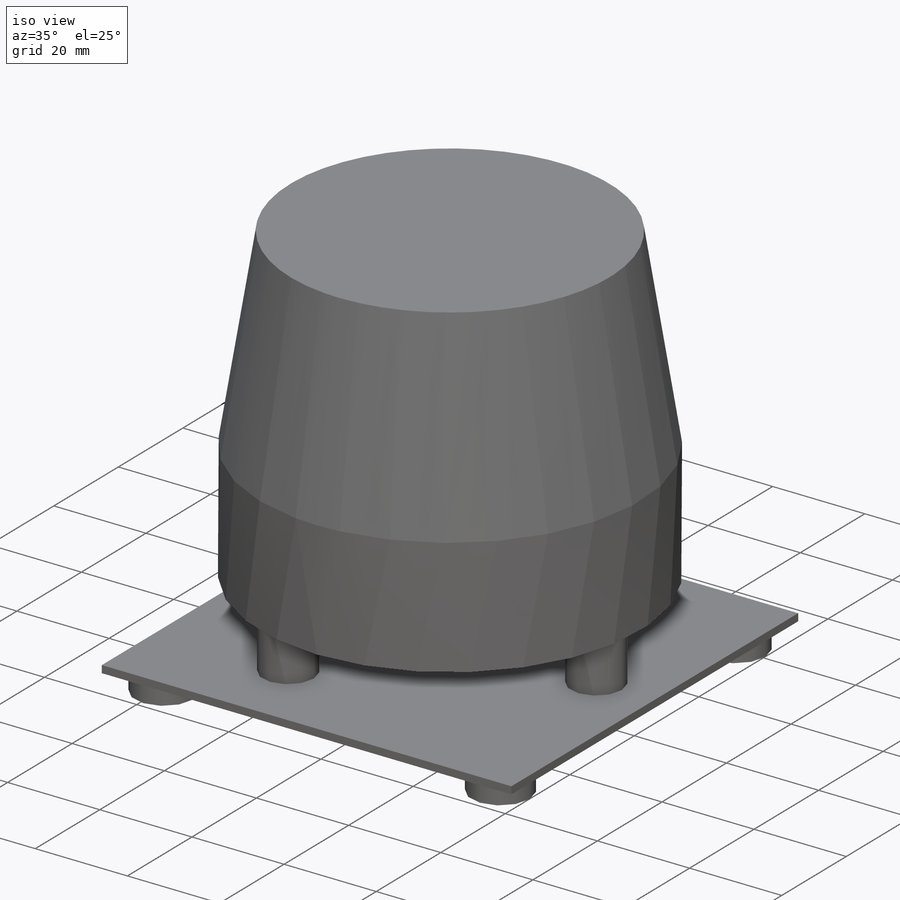
[diagram: iso view]
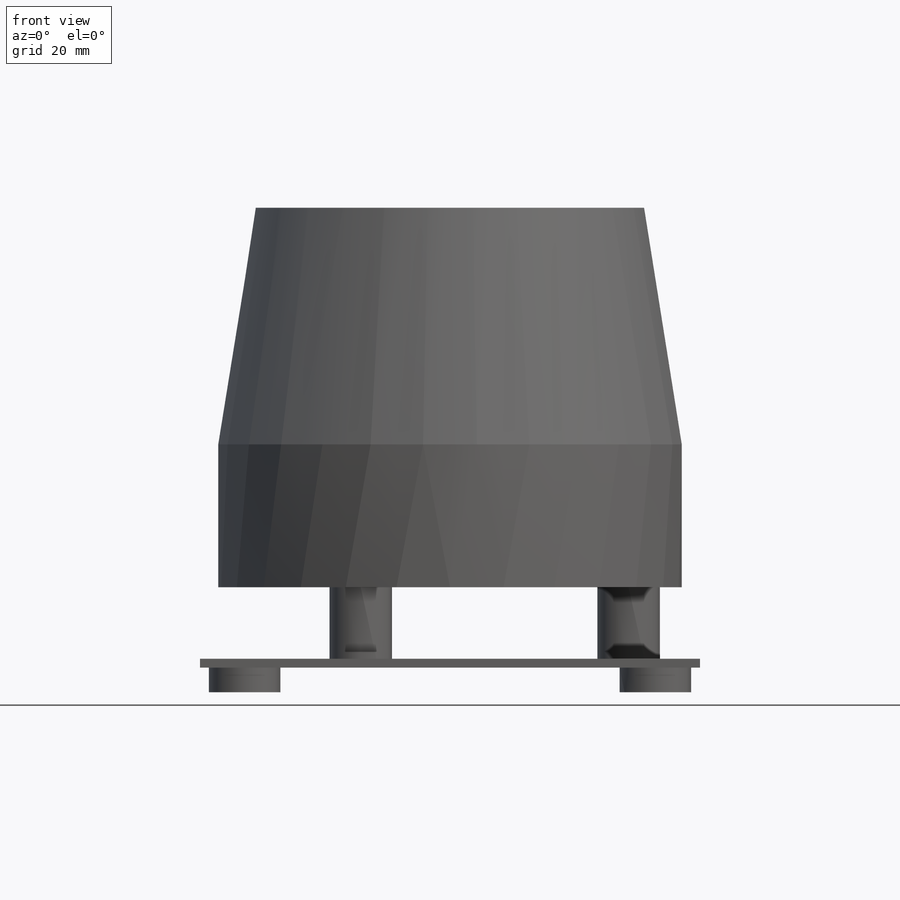
[diagram: front view]
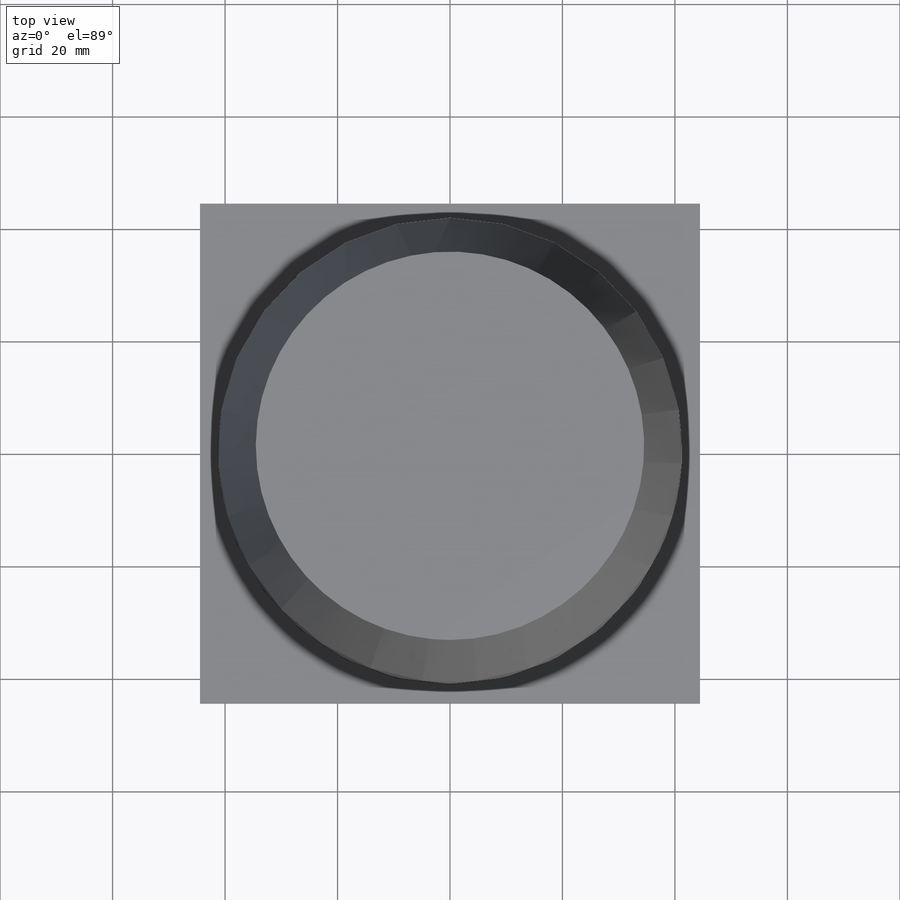
[diagram: top view]
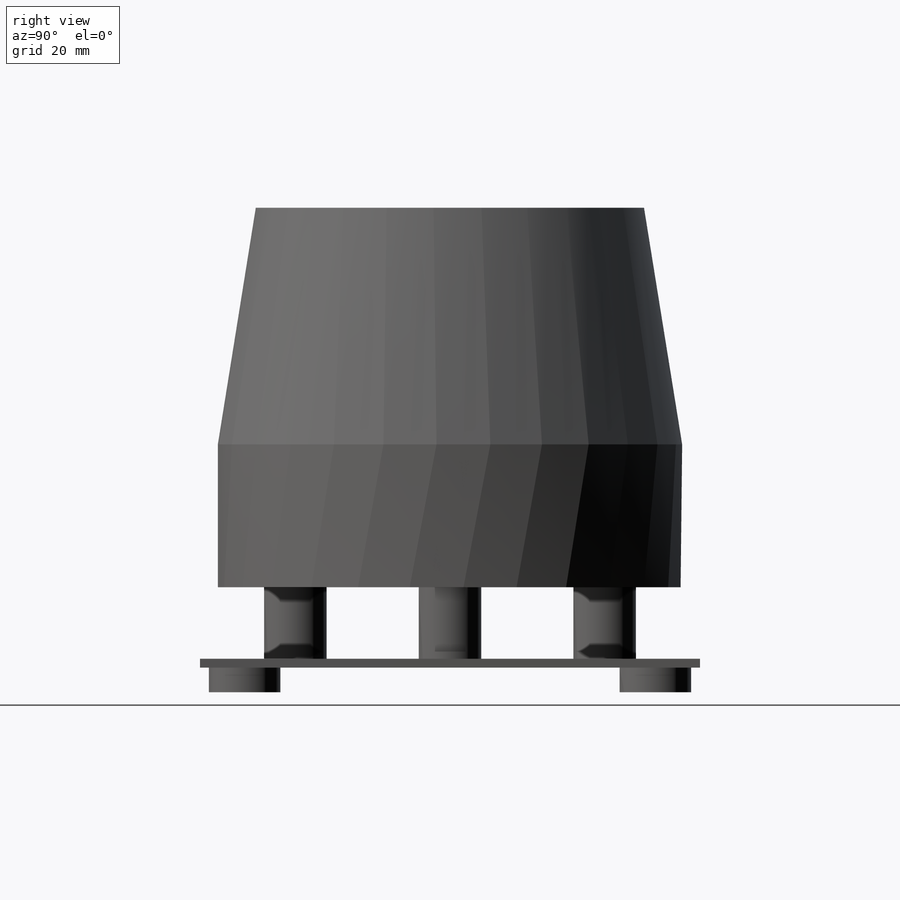
[diagram: right view]
SOLIDWORKS PART (.sldprt)
format: sldprt  version: not decoded by parser v0  size: 396,800 bytes
history: native  units: mm
features: sketch x6, extrude x4, pattern_circular x2, material x1, plane x1 (+12 scaffold rows collapsed)
feature tree (26):
  scaffold x12  (default folders/planes/origin — collapsed)
  material  "Material <not specified>"
  plane  "Plane1"  Offset=42.0624mm
  sketch  "Sketch1"  dims[D1=69.0626mm]
  sketch  "Sketch2"  dims[D1=82.55mm]
  sketch  "Sketch4"  dims[D1=82.55mm]
  extrude  "Extrude1"  Depth=25.4mm
  sketch  "Sketch8"  dims[D1=11.1125mm D2=63.5mm]
  extrude  "Extrude4"  Depth=12.7mm
  pattern_circular  "CirPattern2"  Count=3 Angle=360deg
  sketch  "Sketch6"  dims[param=0.0mm D1=88.9mm D2=88.9mm D3=44.45mm D4=44.45mm]
  extrude  "Extrude2"  Depth=1.5875mm
  sketch  "Sketch7"  dims[D1=12.7mm D2=36.5125mm D3=36.5125mm]
  extrude  "Extrude3"  Depth=4.3688mm
  pattern_circular  "CirPattern1"  Count=4 Angle=360deg
decode coverage: 12 of 12 modeling features carry decoded parameters
note: suppression state not decoded; provenance and decode notes live in map.json
